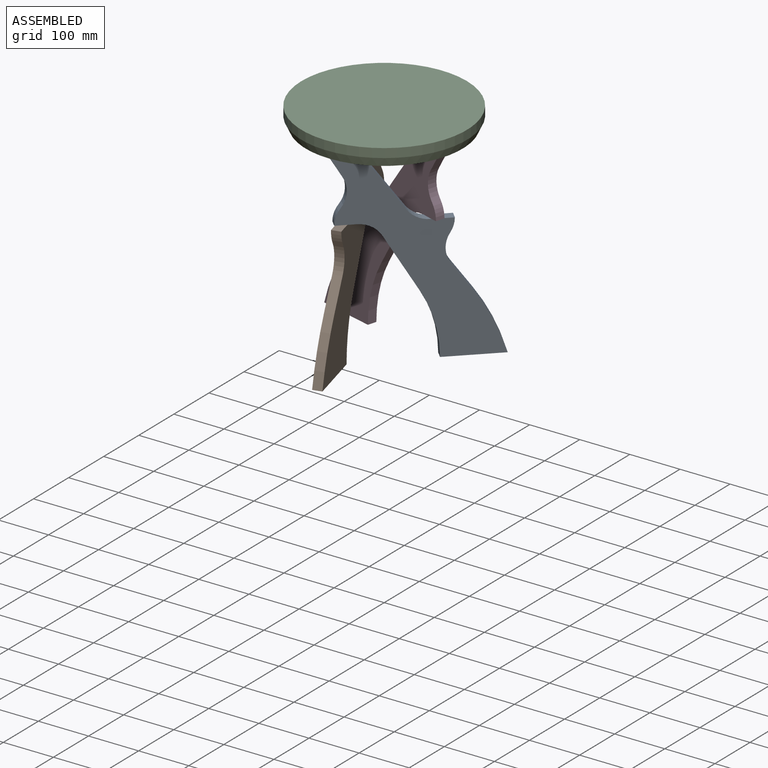
[diagram: assembled view]
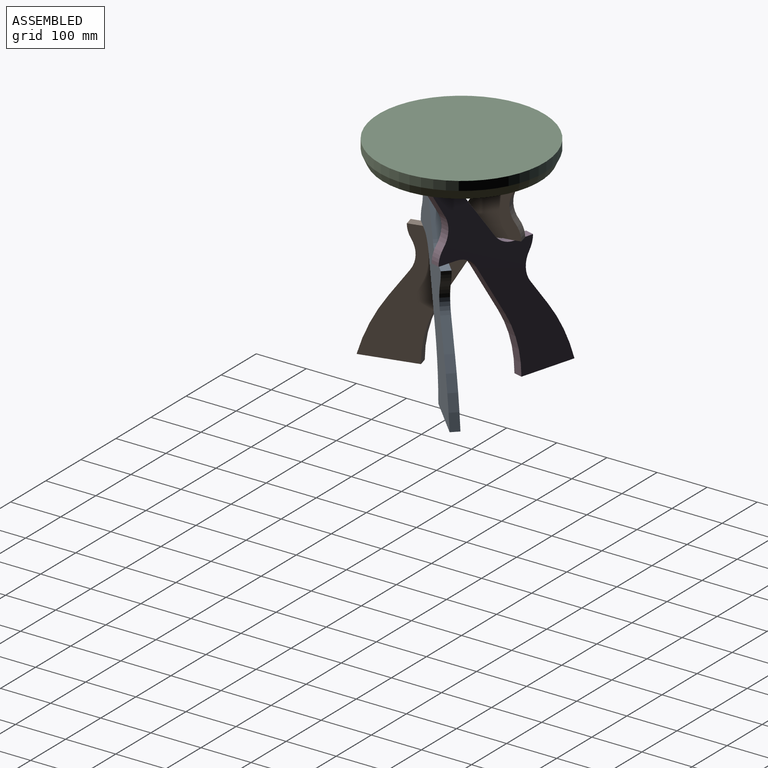
[diagram: assembled view, second angle]
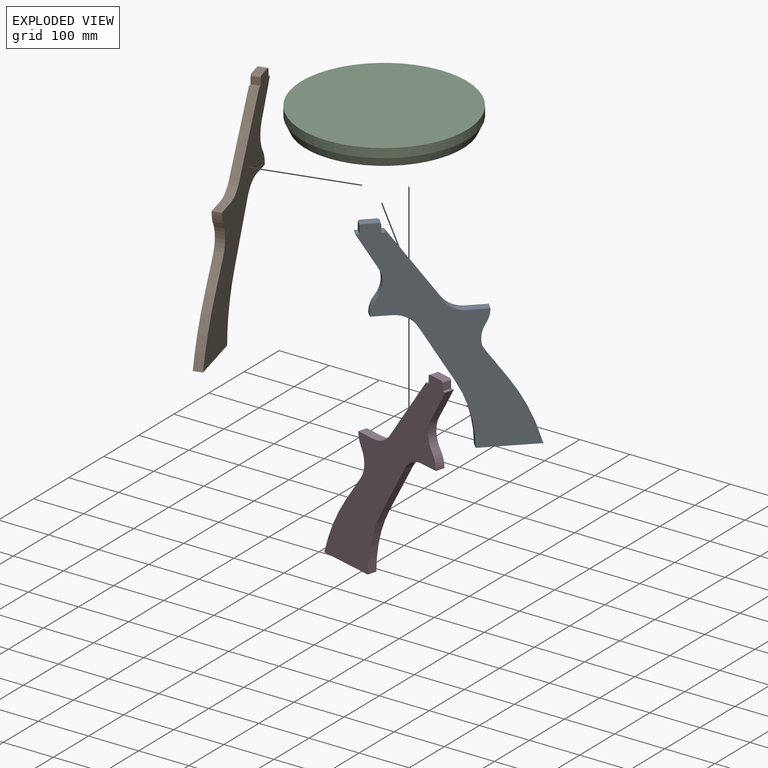
[diagram: exploded view]
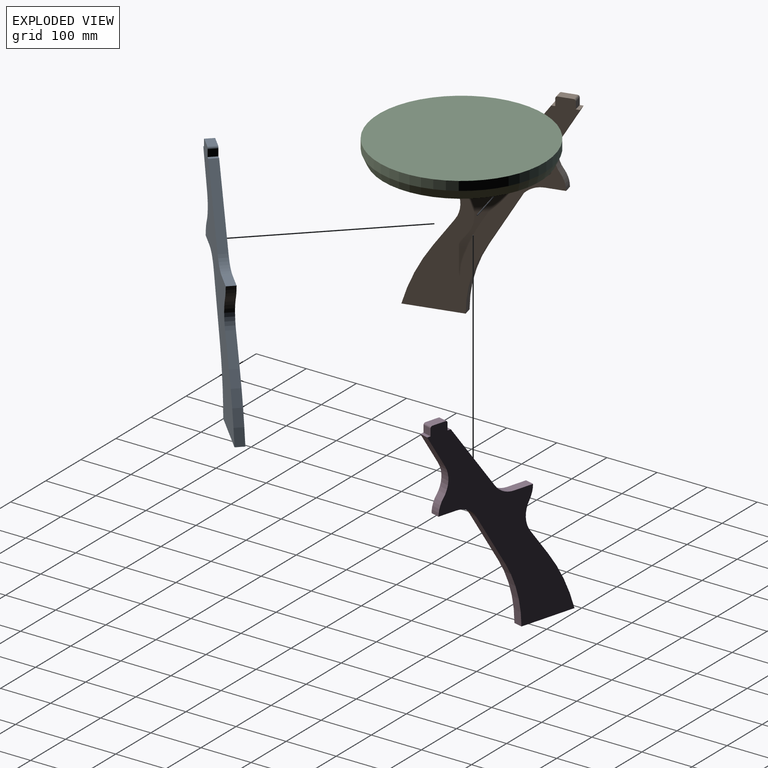
[diagram: exploded view, second angle]
ASSEMBLY  parts=4 mates=9
PART A: 24 faces, bbox 311.7x18x418 mm
  f0: plane 18x14mm, normal (-1,0,0), area 252mm2, adj f1,f21,f22,f23
  f1: plane 18x7mm, normal (0,0,1), area 126mm2, adj f0,f2,f22,f23
  f2: plane 63.23x37.78mm, normal (-0.86,0,-0.51), area 1325.8mm2, adj f1,f3,f22,f23
  f3: cylinder r=50mm len=56.21mm, axis (0,1,0), area 1076.6mm2, adj f2,f4,f22,f23
  f4: cylinder r=50mm len=30.56mm, axis (0,1,0), area 591.9mm2, adj f3,f5,f22,f23
  f5: plane 37.25x18mm, normal (0,0,-1), area 670.6mm2, adj f4,f6,f22,f23
  f6: cylinder r=50mm len=42.92mm, axis (0,1,0), area 929mm2, adj f5,f7,f22,f23
  f7: plane 102.36x61.16mm, normal (-0.86,0,-0.51), area 2146.3mm2, adj f6,f8,f22,f23
  f8: cylinder r=240.36mm len=123.29mm, axis (0,1,0), area 2330.2mm2, adj f7,f9,f22,f23
  f9: plane 112.32x18mm, normal (0,0,-1), area 2021.7mm2, adj f8,f10,f22,f23
  f10: cylinder r=366.58mm len=114.68mm, axis (0,1,0), area 2305.3mm2, adj f9,f11,f22,f23
  f11: plane 52.7x38.08mm, normal (0.81,0,0.59), area 1170.3mm2, adj f10,f12,f22,f23
  f12: cylinder r=50mm len=55.95mm, axis (0,1,0), area 1069.4mm2, adj f11,f13,f22,f23
  f13: cylinder r=50mm len=26.67mm, axis (0,1,0), area 506.3mm2, adj f12,f14,f22,f23
  f14: plane 40.07x18mm, normal (0,0,1), area 721.2mm2, adj f13,f15,f22,f23
  f15: cylinder r=50mm len=40.53mm, axis (0,1,0), area 850.6mm2, adj f14,f16,f22,f23
  f16: plane 129.28x93.41mm, normal (0.81,0,0.59), area 2870.9mm2, adj f15,f17,f22,f23
  f17: plane 18x7mm, normal (0,0,1), area 126mm2, adj f16,f18,f22,f23
  f18: plane 18x14mm, normal (1,0,0), area 252mm2, adj f17,f19,f22,f23
  f19: cylinder r=4mm len=18mm, axis (0,1,0), area 113.1mm2, adj f18,f20,f22,f23
  f20: plane 28x18mm, normal (0,0,1), area 504mm2, adj f19,f21,f22,f23
  f21: cylinder r=4mm len=18mm, axis (0,1,0), area 113.1mm2, adj f0,f20,f22,f23
  f22: plane 418x311.68mm, normal (0,-1,0), area 35989.9mm2, adj f0,f1,f2,f3,f4,f5,f6,f7
  f23: plane 418x311.68mm, normal (0,1,0), area 35989.9mm2, adj f0,f1,f2,f3,f4,f5,f6,f7
PART B: same geometry as A
PART C: 19 faces, bbox 330x330x36 mm
  f0: plane 313.21x313.21mm, normal (0,0,-1), area 75105.4mm2, adj f3,f4,f5,f6,f8,f9,f10,f11
  f1: cylinder r=165mm len=330mm, axis (0,0,-1), area 18661.1mm2, adj f2,f18
  f2: plane 330x330mm, normal (0,0,1), area 85529.9mm2, adj f1
  f3: plane 31.18x18mm, normal (0.87,0.5,0), area 648mm2, adj f0,f4,f6,f7
  f4: plane 18x15.59mm, normal (0.5,-0.87,0), area 324mm2, adj f0,f3,f5,f7
  f5: plane 31.18x18mm, normal (-0.87,-0.5,0), area 648mm2, adj f0,f4,f6,f7
  f6: plane 18x15.59mm, normal (-0.5,0.87,0), area 324mm2, adj f0,f3,f5,f7
  f7: plane 40.18x33.59mm, normal (0,0,-1), area 648mm2, adj f3,f4,f5,f6
  f8: plane 36x18mm, normal (0,-1,0), area 648mm2, adj f0,f9,f11,f12
  f9: plane 18x18mm, normal (-1,0,0), area 324mm2, adj f0,f8,f10,f12
  f10: plane 36x18mm, normal (0,1,0), area 648mm2, adj f0,f9,f11,f12
  f11: plane 18x18mm, normal (1,0,0), area 324mm2, adj f0,f8,f10,f12
  f12: plane 36x18mm, normal (0,0,-1), area 648mm2, adj f8,f9,f10,f11
  f13: plane 18x15.59mm, normal (0.5,0.87,0), area 324mm2, adj f0,f14,f16,f17
  f14: plane 31.18x18mm, normal (0.87,-0.5,0), area 648mm2, adj f0,f13,f15,f17
  f15: plane 18x15.59mm, normal (-0.5,-0.87,0), area 324mm2, adj f0,f14,f16,f17
  f16: plane 31.18x18mm, normal (-0.87,0.5,0), area 648mm2, adj f0,f13,f15,f17
  f17: plane 40.18x33.59mm, normal (0,0,-1), area 648mm2, adj f13,f14,f15,f16
  f18: cone r=165mm half-angle=25deg, axis (0,0,1), area 20066.5mm2, adj f0,f1
PART D: same geometry as A
PLACE A rot(axis=(0,0,1),44.4deg) t=(-87.81,-134.1,-250.77)mm
PLACE B rot(axis=(0,0,-1),75.6deg) t=(-72.23,143.09,-250.77)mm
PLACE C rot(axis=(0,0,-1),135.6deg) t=(0,0,149.23)mm
PLACE D rot(axis=(0,0,1),164.4deg) t=(160.04,-9,-250.77)mm
MATE planar A.f23 <-> C.f10  axis (-0.7,0.71,0) through (97.2,47.25,-83.39)mm
MATE planar A.f0 <-> C.f9  axis (-0.71,-0.7,0) through (-47.23,-106.92,156.23)mm
MATE planar B.f4 <-> C.f16  axis (-0.97,-0.25,0) through (-61,27.24,-0.77)mm
MATE planar A.f20 <-> C.f12  axis (0,0,1) through (-34.38,-94.32,167.23)mm
MATE planar C.f13 <-> B.f0  axis (0.25,-0.97,0) through (-68.98,94.36,158.23)mm
MATE planar B.f20 <-> C.f17  axis (0,0,1) through (-64.5,76.93,167.23)mm
MATE planar D.f20 <-> C.f7  axis (0,0,1) through (98.87,17.39,167.23)mm
MATE planar D.f4 <-> C.f3  axis (0.27,0.96,0) through (54.09,39.21,-0.77)mm
MATE planar D.f18 <-> C.f6  axis (-0.96,0.27,0) through (81.53,22.22,156.23)mm
